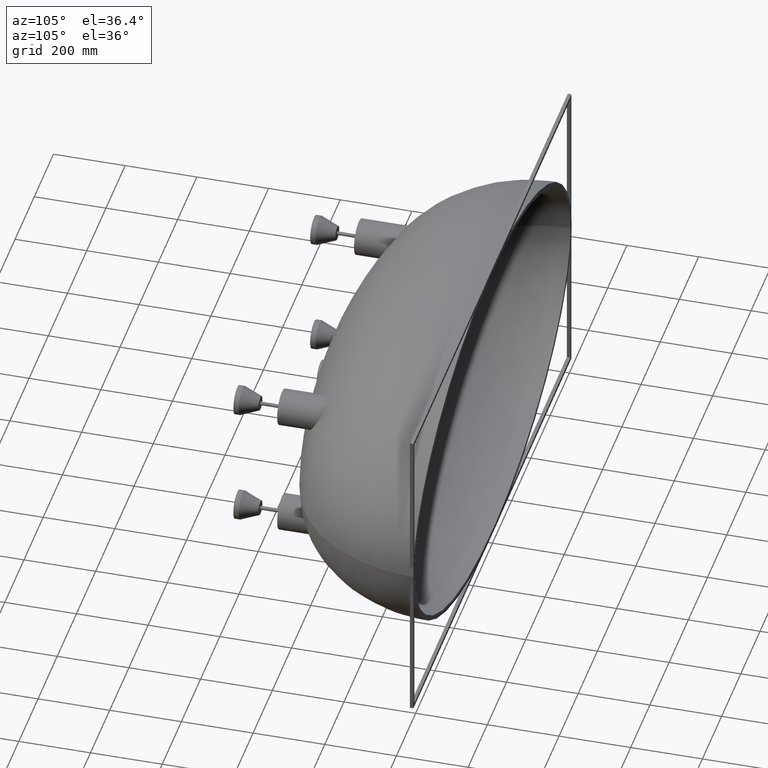
[diagram: clean part render]
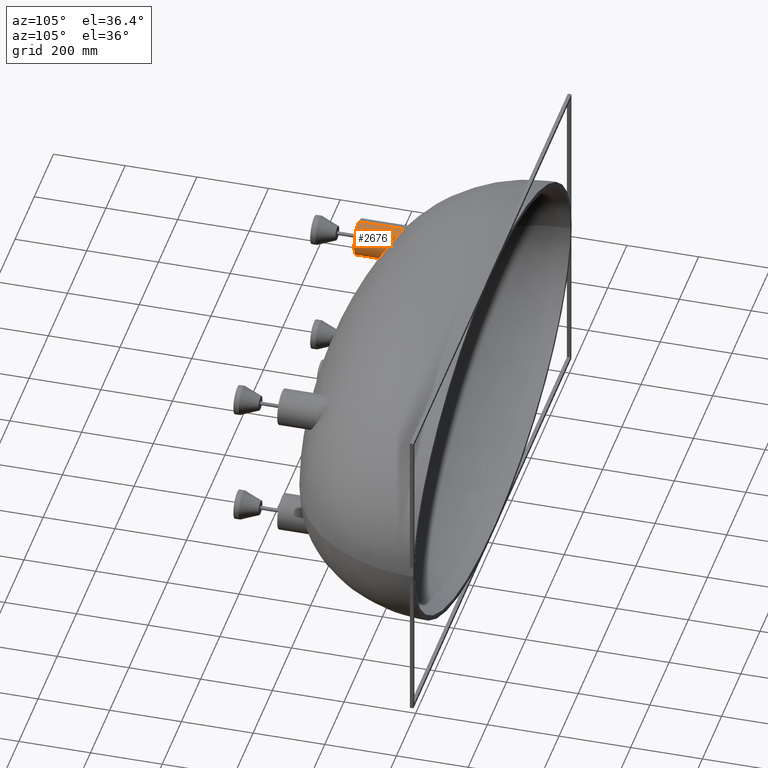
[diagram: same view with one face highlighted and labeled with its STEP entity id]
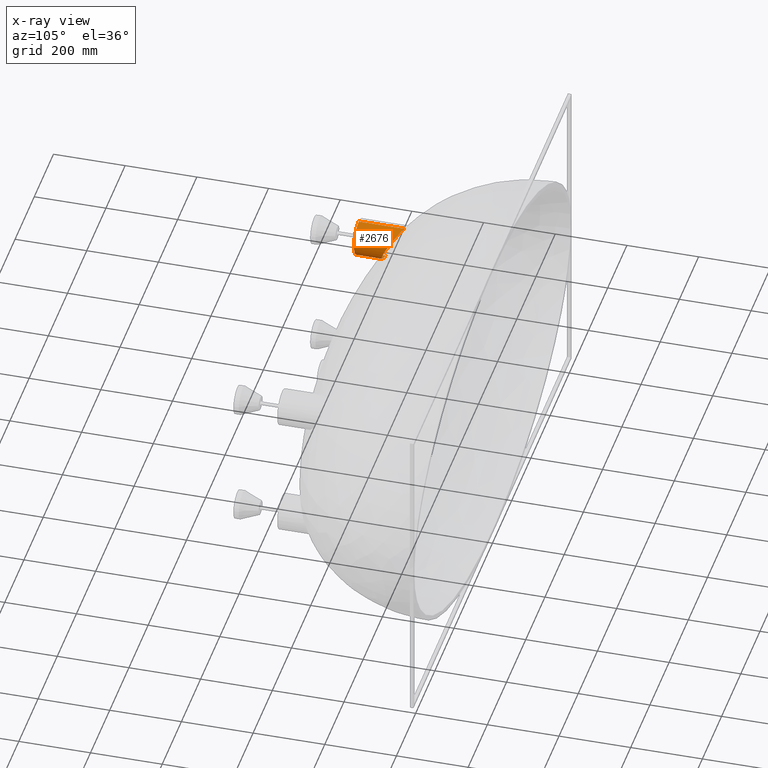
[diagram: x-ray of the same camera — body ghosted, the highlighted face saturated]
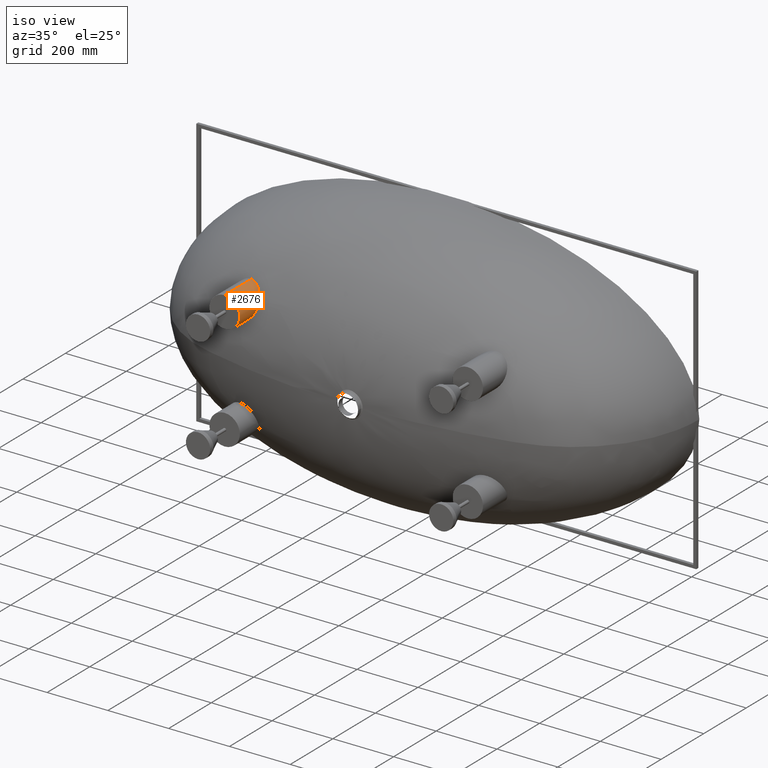
[diagram: same view with one face highlighted and labeled with its STEP entity id]
A machine part, auxiliary view. The second image highlights one B-rep face of the part: STEP entity #2676.
The next image is the same camera in x-ray: the body ghosted, the highlighted face saturated — about 1% of this face is hidden behind the body in this view.
A second angle (iso view) of the same face is appended — the face is thin or edge-on in the first view.
In plain terms, the highlighted cylindrical surface (edge-blend (fillet) strip) has radius 50 mm, axis along (-0, -1, -0).
Its self-contained STEP definition (entity closure, byte-faithful):
#551 = DIRECTION ( 'NONE',  ( 0.0000000000000000000, 0.0000000000000000000, 1.000000000000000000 ) ) ;
#772 = CARTESIAN_POINT ( 'NONE',  ( -373.3862368468343200, -407.5383186869091200, 132.6621788609095600 ) ) ;
#814 = DIRECTION ( 'NONE',  ( 0.0000000000000000000, 1.000000000000000000, 0.0000000000000000000 ) ) ;
#863 = CARTESIAN_POINT ( 'NONE',  ( -353.9638889436979000, -402.3990776705940100, 155.4708003800692800 ) ) ;
#906 = CARTESIAN_POINT ( 'NONE',  ( -399.9999999999999400, -480.0000000000000000, 175.0000000000000000 ) ) ;
#953 = CARTESIAN_POINT ( 'NONE',  ( -350.8706498272508700, -389.2399636080268100, 184.7911307085227900 ) ) ;
#1044 = CARTESIAN_POINT ( 'NONE',  ( -363.2079306657223600, -373.0368597320390900, 208.8914162502701700 ) ) ;
#1127 = CARTESIAN_POINT ( 'NONE',  ( -391.6616166013058100, -356.1998143189444500, 224.3068242057628900 ) ) ;
#1446 = ORIENTED_EDGE ( 'NONE', *, *, #10037, .T. ) ;
#1718 = VERTEX_POINT ( 'NONE', #22880 ) ;
#2389 = ORIENTED_EDGE ( 'NONE', *, *, #12000, .T. ) ;
#2664 = CARTESIAN_POINT ( 'NONE',  ( -400.0000000000000000, -404.7099913693023200, 124.9999999999998900 ) ) ;
#2676 = ADVANCED_FACE ( 'NONE', ( #16422 ), #13943, .T. ) ;
#2751 = CARTESIAN_POINT ( 'NONE',  ( -371.1729091201773900, -407.4432359343227900, 134.1369127747375700 ) ) ;
#2842 = CARTESIAN_POINT ( 'NONE',  ( -353.0351432960157500, -401.5726217661086800, 157.8240496158114200 ) ) ;
#2931 = CARTESIAN_POINT ( 'NONE',  ( -352.0739181640642500, -386.6236581064780500, 189.2718021083474600 ) ) ;
#3025 = CARTESIAN_POINT ( 'NONE',  ( -367.5118394249973300, -369.4524362350239200, 213.1266528099691300 ) ) ;
#3116 = CARTESIAN_POINT ( 'NONE',  ( -394.1322340626413200, -355.2888397279895700, 224.6615179832382700 ) ) ;
#3458 = CARTESIAN_POINT ( 'NONE',  ( -399.9999999999999400, 500000.0000000000600, 175.0000000000000000 ) ) ;
#3490 = DIRECTION ( 'NONE',  ( 0.0000000000000000000, 0.0000000000000000000, -1.000000000000000000 ) ) ;
#4702 = CARTESIAN_POINT ( 'NONE',  ( -364.9928484448009300, -406.8153850725392400, 139.1301403704177300 ) ) ;
#4796 = CARTESIAN_POINT ( 'NONE',  ( -351.4459192602502600, -399.8013735140672200, 162.6010712139242900 ) ) ;
#4887 = CARTESIAN_POINT ( 'NONE',  ( -352.7835043177296900, -385.2968413738239000, 191.4677225751355300 ) ) ;
#4975 = CARTESIAN_POINT ( 'NONE',  ( -373.7648102718494000, -365.1380510258916800, 217.5924442277855300 ) ) ;
#5060 = CARTESIAN_POINT ( 'NONE',  ( -398.3026956829531300, -353.9069426518361200, 225.0000000000000300 ) ) ;
#5349 = ORIENTED_EDGE ( 'NONE', *, *, #8419, .T. ) ;
#5717 = VERTEX_POINT ( 'NONE', #24272 ) ;
#5922 = ORIENTED_EDGE ( 'NONE', *, *, #11506, .F. ) ;
#6238 = B_SPLINE_CURVE_WITH_KNOTS ( 'NONE', 3,
 ( #2664, #16355, #18260, #6594, #20167, #8555, #22104, #10494, #24068, #12471, #772, #14464, #2751, #16448, #4702, #18340, #6681, #20257, #8636, #22192, #10582, #24161, #12563, #863, #14550, #2842, #16535, #4796, #18420, #6775, #20344, #8726, #22277, #10675, #24246, #12648, #953, #14638, #2931, #16624, #4887, #18508, #6871, #20423, #8809, #22367, #10767, #24338, #12747, #1044, #14729, #3025, #16719, #4975, #18595, #6962, #20509, #8900, #22455, #10860, #24424, #12831, #1127, #14817, #3116, #16805, #5060, #18684 ),
 .UNSPECIFIED., .F., .F.,
 ( 4, 2, 2, 2, 2, 2, 2, 2, 2, 2, 2, 2, 2, 2, 2, 2, 2, 2, 2, 2, 2, 2, 2, 2, 2, 2, 2, 2, 2, 2, 2, 2, 2, 4 ),
 ( 0.0000000000000000000, 0.01055981845089306600, 0.01583972767633961100, 0.02111963690178615000, 0.02639954612723269300, 0.02903950073995594700, 0.03167945535267920100, 0.04223927380357205700, 0.04487922841629527600, 0.04751918302901850200, 0.05279909225446474700, 0.05807900147991100500, 0.06071895609263405800, 0.06335891070535711000, 0.07391872915624919700, 0.07655868376897227700, 0.07919863838169534400, 0.08447854760714158800, 0.09503836605803396600, 0.09767832067075697700, 0.1003182752834800000, 0.1055981845089259700, 0.1161580029598179700, 0.1187979575725409100, 0.1214379121852638300, 0.1267178214107096700, 0.1372776398616013500, 0.1425575490870471300, 0.1478374583124929300, 0.1531173675379387000, 0.1583972767633845000, 0.1610372313761074300, 0.1636771859888303500, 0.1689570952142762600 ),
 .UNSPECIFIED. ) ;
#6413 = DIRECTION ( 'NONE',  ( -0.0000000000000000000, -1.000000000000000000, -0.0000000000000000000 ) ) ;
#6594 = CARTESIAN_POINT ( 'NONE',  ( -387.9314487012671300, -406.7749604407416700, 126.4469016901272300 ) ) ;
#6681 = CARTESIAN_POINT ( 'NONE',  ( -361.5313439563950600, -405.9791329356992300, 143.0481021500722800 ) ) ;
#6775 = CARTESIAN_POINT ( 'NONE',  ( -350.2628776062247200, -396.7231068808653200, 169.8161100919698200 ) ) ;
#6871 = CARTESIAN_POINT ( 'NONE',  ( -354.1576459460809500, -383.0670934105890500, 195.0190447922790900 ) ) ;
#6962 = CARTESIAN_POINT ( 'NONE',  ( -377.8928104786869000, -362.6599055907164500, 219.8747302826433800 ) ) ;
#7894 = LINE ( 'NONE', #14203, #19691 ) ;
#8292 = VECTOR ( 'NONE', #12938, 1000.000000000000000 ) ;
#8419 = EDGE_CURVE ( 'NONE', #22269, #18481, #18317, .T. ) ;
#8555 = CARTESIAN_POINT ( 'NONE',  ( -382.8486685154339300, -407.2838462847755600, 128.0000996497164200 ) ) ;
#8636 = CARTESIAN_POINT ( 'NONE',  ( -359.9098306922607000, -405.4876570656955400, 145.1078984187741100 ) ) ;
#8726 = CARTESIAN_POINT ( 'NONE',  ( -350.0703660772478500, -395.6226999163924900, 172.2283755734240200 ) ) ;
#8809 = CARTESIAN_POINT ( 'NONE',  ( -357.6264646699135600, -378.5411802076293400, 201.7151257695382800 ) ) ;
#8900 = CARTESIAN_POINT ( 'NONE',  ( -382.2435132835327600, -360.3433531021851200, 221.7677154974061300 ) ) ;
#10037 = EDGE_CURVE ( 'NONE', #1718, #22269, #18615, .T. ) ;
#10494 = CARTESIAN_POINT ( 'NONE',  ( -377.9882833728029800, -407.5429241075758600, 130.0713853964748200 ) ) ;
#10582 = CARTESIAN_POINT ( 'NONE',  ( -357.4538422877587900, -404.5392310634703100, 148.6800965810871600 ) ) ;
#10675 = CARTESIAN_POINT ( 'NONE',  ( -349.9761818659838500, -394.0982357487720800, 175.4433337643287100 ) ) ;
#10767 = CARTESIAN_POINT ( 'NONE',  ( -360.2996239551358700, -375.7781069059462300, 205.4048612103402100 ) ) ;
#10851 = CARTESIAN_POINT ( 'NONE',  ( -399.9999999999999400, -480.0000000000000000, 124.9999999999999100 ) ) ;
#10860 = CARTESIAN_POINT ( 'NONE',  ( -386.8268784793069100, -358.1865107033830800, 223.2604125461722000 ) ) ;
#11163 = DIRECTION ( 'NONE',  ( -0.0000000000000000000, -1.000000000000000000, -0.0000000000000000000 ) ) ;
#11506 = EDGE_CURVE ( 'NONE', #5717, #18481, #7894, .T. ) ;
#12000 = EDGE_CURVE ( 'NONE', #5717, #1718, #6238, .T. ) ;
#12471 = CARTESIAN_POINT ( 'NONE',  ( -374.1376946749852000, -407.5552149883289400, 132.1990992976867900 ) ) ;
#12563 = CARTESIAN_POINT ( 'NONE',  ( -354.9925225820754200, -403.1767999953451600, 153.1555587755592000 ) ) ;
#12648 = CARTESIAN_POINT ( 'NONE',  ( -350.3555463044139100, -390.9123290973686800, 181.7308237372428700 ) ) ;
#12747 = CARTESIAN_POINT ( 'NONE',  ( -361.7229688488851000, -374.4026346631960100, 207.1782535510151300 ) ) ;
#12831 = CARTESIAN_POINT ( 'NONE',  ( -390.8420130302272900, -356.5184867860023700, 224.1611382660497000 ) ) ;
#12938 = DIRECTION ( 'NONE',  ( -0.0000000000000000000, -1.000000000000000000, -0.0000000000000000000 ) ) ;
#13114 = CARTESIAN_POINT ( 'NONE',  ( -399.9999999999999400, 500000.0000000000600, 225.0000000000000600 ) ) ;
#13428 = EDGE_LOOP ( 'NONE', ( #2389, #1446, #5349, #5922 ) ) ;
#13943 = CYLINDRICAL_SURFACE ( 'NONE', #18618, 50.00000000000007100 ) ;
#14203 = CARTESIAN_POINT ( 'NONE',  ( -399.9999999999999400, 500000.0000000000600, 124.9999999999999100 ) ) ;
#14464 = CARTESIAN_POINT ( 'NONE',  ( -371.9043720454247900, -407.4823666443541000, 133.6306976392336900 ) ) ;
#14550 = CARTESIAN_POINT ( 'NONE',  ( -353.6410170335505500, -402.1301423462765600, 156.2501803970723100 ) ) ;
#14638 = CARTESIAN_POINT ( 'NONE',  ( -351.8585012821423000, -387.0640453805697200, 188.5275111072865000 ) ) ;
#14729 = CARTESIAN_POINT ( 'NONE',  ( -364.2469497193076200, -372.1342059274092500, 209.9857107064592000 ) ) ;
#14817 = CARTESIAN_POINT ( 'NONE',  ( -393.3059080803759600, -355.5853239745415000, 224.5568429617267700 ) ) ;
#16355 = CARTESIAN_POINT ( 'NONE',  ( -396.5129572233208300, -405.4663578631535800, 124.9999999999999600 ) ) ;
#16422 = FACE_OUTER_BOUND ( 'NONE', #13428, .T. ) ;
#16448 = CARTESIAN_POINT ( 'NONE',  ( -367.5807401224785200, -407.1908070765661600, 136.7680676951752000 ) ) ;
#16535 = CARTESIAN_POINT ( 'NONE',  ( -352.7515959472277700, -401.2833087920531100, 158.6204296015960700 ) ) ;
#16624 = CARTESIAN_POINT ( 'NONE',  ( -352.5364211058955000, -385.7401374612374500, 190.7417385992705200 ) ) ;
#16719 = CARTESIAN_POINT ( 'NONE',  ( -369.8838815847165600, -367.6990458892029800, 215.0328034625716500 ) ) ;
#16805 = CARTESIAN_POINT ( 'NONE',  ( -396.6241691350525700, -354.4329287350710700, 224.9138452531139800 ) ) ;
#18260 = CARTESIAN_POINT ( 'NONE',  ( -393.0598041765569000, -406.0771796372932300, 125.3608337531190400 ) ) ;
#18317 = CIRCLE ( 'NONE', #22000, 50.00000000000007100 ) ;
#18340 = CARTESIAN_POINT ( 'NONE',  ( -362.0941050380472500, -406.1277075244449300, 142.3824840729810700 ) ) ;
#18420 = CARTESIAN_POINT ( 'NONE',  ( -350.7470542556786800, -398.4969107939176100, 165.8015070267902600 ) ) ;
#18481 = VERTEX_POINT ( 'NONE', #10851 ) ;
#18508 = CARTESIAN_POINT ( 'NONE',  ( -353.5710306124963200, -383.9625305397088900, 193.6194577503237900 ) ) ;
#18595 = CARTESIAN_POINT ( 'NONE',  ( -375.1186043988659500, -364.2928245779820600, 218.3979884258604000 ) ) ;
#18615 = LINE ( 'NONE', #13114, #8292 ) ;
#18618 = AXIS2_PLACEMENT_3D ( 'NONE', #3458, #11163, #3490 ) ;
#18684 = CARTESIAN_POINT ( 'NONE',  ( -399.9999999999998300, -353.4300241764637500, 225.0000000000002600 ) ) ;
#19691 = VECTOR ( 'NONE', #6413, 1000.000000000000000 ) ;
#20167 = CARTESIAN_POINT ( 'NONE',  ( -386.2290613350515400, -406.9709276804145500, 126.9009350099580300 ) ) ;
#20257 = CARTESIAN_POINT ( 'NONE',  ( -360.4399701955523500, -405.6593935000092300, 144.4097186040303300 ) ) ;
#20344 = CARTESIAN_POINT ( 'NONE',  ( -350.1857083859238200, -396.3611332351831000, 170.6197492526298700 ) ) ;
#20423 = CARTESIAN_POINT ( 'NONE',  ( -356.0966053060485000, -380.3645523487841200, 199.1169287586045300 ) ) ;
#20509 = CARTESIAN_POINT ( 'NONE',  ( -379.3171775471732900, -361.8692124109738900, 220.5492358744165500 ) ) ;
#21519 = CARTESIAN_POINT ( 'NONE',  ( -399.9999999999999400, -480.0000000000000000, 225.0000000000000600 ) ) ;
#22000 = AXIS2_PLACEMENT_3D ( 'NONE', #906, #814, #551 ) ;
#22104 = CARTESIAN_POINT ( 'NONE',  ( -381.2010224844052000, -407.3980399499581000, 128.6352016780373000 ) ) ;
#22192 = CARTESIAN_POINT ( 'NONE',  ( -358.3838732747236700, -404.9421465459593000, 147.2306707922595600 ) ) ;
#22269 = VERTEX_POINT ( 'NONE', #21519 ) ;
#22277 = CARTESIAN_POINT ( 'NONE',  ( -350.0321701959957200, -395.2453921443199100, 173.0351295052867600 ) ) ;
#22367 = CARTESIAN_POINT ( 'NONE',  ( -359.8408910342559500, -376.2399862106195200, 204.7963398701213900 ) ) ;
#22455 = CARTESIAN_POINT ( 'NONE',  ( -383.7456311687992600, -359.6084685446323300, 222.3116692119922700 ) ) ;
#22880 = CARTESIAN_POINT ( 'NONE',  ( -399.9999999999998300, -353.4300241764637500, 225.0000000000002600 ) ) ;
#24068 = CARTESIAN_POINT ( 'NONE',  ( -376.4231964240490800, -407.5736114112460800, 130.8724792929030500 ) ) ;
#24161 = CARTESIAN_POINT ( 'NONE',  ( -355.7581469965900900, -403.6565654875937500, 151.6425323530035600 ) ) ;
#24246 = CARTESIAN_POINT ( 'NONE',  ( -350.0164887012118700, -393.3150362304272700, 177.0291724847071700 ) ) ;
#24272 = CARTESIAN_POINT ( 'NONE',  ( -400.0000000000000000, -404.7099913693023200, 124.9999999999998900 ) ) ;
#24338 = CARTESIAN_POINT ( 'NONE',  ( -361.2402642441562600, -374.8598638709389100, 206.5952263397629500 ) ) ;
#24424 = CARTESIAN_POINT ( 'NONE',  ( -388.4067277775096700, -357.5011745053678900, 223.6656039003318000 ) ) ;